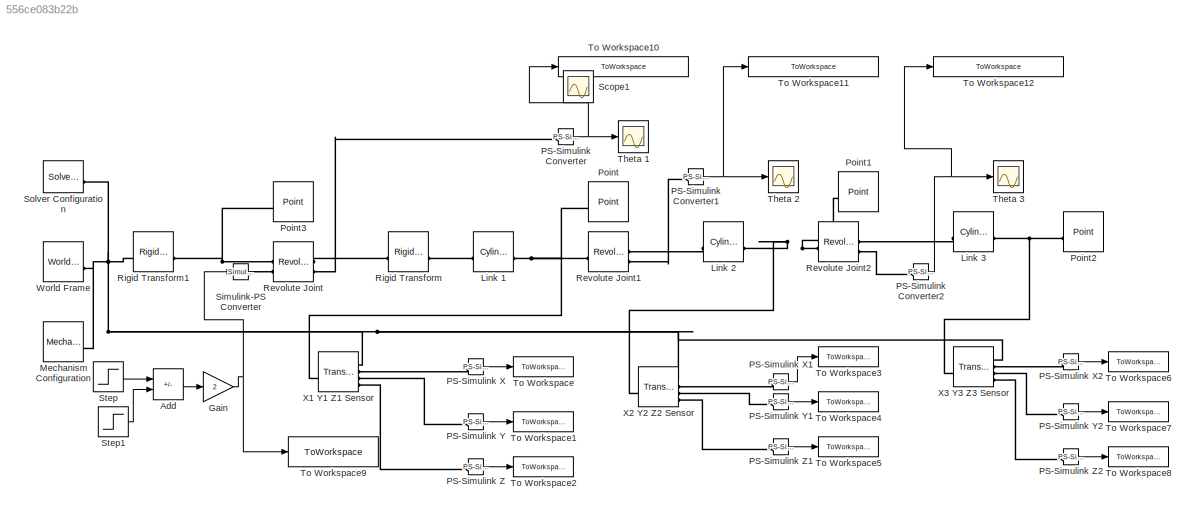
MODEL slx_556ce083b22b
KIND model
CONFIG AbsTol = 1e-9
CONFIG EnableMultiTasking = on
CONFIG FixedStep = 1/(30*10)
CONFIG MaxStep = auto
CONFIG MinStep = auto
CONFIG RelTol = 1e-9
CONFIG SampleTimeConstraint = Unconstrained
CONFIG SolverName = FixedStepAuto
CONFIG StartTime = 0.0
CONFIG StopTime = 20
BLOCK [Sum] Add
  IconShape = rectangular
  Inputs = +-
BLOCK [Gain] Gain
  Gain = 2
BLOCK [Reference] Link 1  REF=sm_lib/Body Elements/Cylindrical Solid
  SourceBlock = sm_lib/Body Elements/Cylindrical Solid
  SourceType = Cylindrical Solid
BLOCK [Reference] Link 2  REF=sm_lib/Body Elements/Cylindrical Solid
  SourceBlock = sm_lib/Body Elements/Cylindrical Solid
  SourceType = Cylindrical Solid
BLOCK [Reference] Link 3  REF=sm_lib/Body Elements/Cylindrical Solid
  SourceBlock = sm_lib/Body Elements/Cylindrical Solid
  SourceType = Cylindrical Solid
BLOCK [Reference] Mechanism Configuration  REF=sm_lib/Utilities/Mechanism
Configuration
  SourceBlock = sm_lib/Utilities/Mechanism\nConfiguration
  SourceType = Mechanism\nConfiguration
BLOCK [Reference] PS-Simulink Converter  REF=nesl_utility/PS-Simulink
Converter
  SourceBlock = nesl_utility/PS-Simulink\nConverter
  SourceType = PS-Simulink\nConverter
BLOCK [Reference] PS-Simulink Converter1  REF=nesl_utility/PS-Simulink
Converter
  SourceBlock = nesl_utility/PS-Simulink\nConverter
  SourceType = PS-Simulink\nConverter
BLOCK [Reference] PS-Simulink Converter2  REF=nesl_utility/PS-Simulink
Converter
  SourceBlock = nesl_utility/PS-Simulink\nConverter
  SourceType = PS-Simulink\nConverter
BLOCK [Reference] PS-Simulink X  REF=nesl_utility/PS-Simulink
Converter
  SourceBlock = nesl_utility/PS-Simulink\nConverter
  SourceType = PS-Simulink\nConverter
BLOCK [Reference] PS-Simulink X1  REF=nesl_utility/PS-Simulink
Converter
  SourceBlock = nesl_utility/PS-Simulink\nConverter
  SourceType = PS-Simulink\nConverter
BLOCK [Reference] PS-Simulink X2  REF=nesl_utility/PS-Simulink
Converter
  SourceBlock = nesl_utility/PS-Simulink\nConverter
  SourceType = PS-Simulink\nConverter
BLOCK [Reference] PS-Simulink Y  REF=nesl_utility/PS-Simulink
Converter
  SourceBlock = nesl_utility/PS-Simulink\nConverter
  SourceType = PS-Simulink\nConverter
BLOCK [Reference] PS-Simulink Y1  REF=nesl_utility/PS-Simulink
Converter
  SourceBlock = nesl_utility/PS-Simulink\nConverter
  SourceType = PS-Simulink\nConverter
BLOCK [Reference] PS-Simulink Y2  REF=nesl_utility/PS-Simulink
Converter
  SourceBlock = nesl_utility/PS-Simulink\nConverter
  SourceType = PS-Simulink\nConverter
BLOCK [Reference] PS-Simulink Z  REF=nesl_utility/PS-Simulink
Converter
  SourceBlock = nesl_utility/PS-Simulink\nConverter
  SourceType = PS-Simulink\nConverter
BLOCK [Reference] PS-Simulink Z1  REF=nesl_utility/PS-Simulink
Converter
  SourceBlock = nesl_utility/PS-Simulink\nConverter
  SourceType = PS-Simulink\nConverter
BLOCK [Reference] PS-Simulink Z2  REF=nesl_utility/PS-Simulink
Converter
  SourceBlock = nesl_utility/PS-Simulink\nConverter
  SourceType = PS-Simulink\nConverter
BLOCK [Reference] Point  REF=sm_lib/Curves and Surfaces/Point
  SourceBlock = sm_lib/Curves and Surfaces/Point
  SourceType = Point
BLOCK [Reference] Point1  REF=sm_lib/Curves and Surfaces/Point
  SourceBlock = sm_lib/Curves and Surfaces/Point
  SourceType = Point
BLOCK [Reference] Point2  REF=sm_lib/Curves and Surfaces/Point
  SourceBlock = sm_lib/Curves and Surfaces/Point
  SourceType = Point
BLOCK [Reference] Point3  REF=sm_lib/Curves and Surfaces/Point
  SourceBlock = sm_lib/Curves and Surfaces/Point
  SourceType = Point
BLOCK [Reference] Revolute Joint  REF=sm_lib/Joints/Revolute Joint
  SourceBlock = sm_lib/Joints/Revolute Joint
  SourceType = Revolute Joint
BLOCK [Reference] Revolute Joint1  REF=sm_lib/Joints/Revolute Joint
  SourceBlock = sm_lib/Joints/Revolute Joint
  SourceType = Revolute Joint
BLOCK [Reference] Revolute Joint2  REF=sm_lib/Joints/Revolute Joint
  SourceBlock = sm_lib/Joints/Revolute Joint
  SourceType = Revolute Joint
BLOCK [Reference] Rigid Transform  REF=sm_lib/Frames and
Transforms/Rigid
Transform
  SourceBlock = sm_lib/Frames and\nTransforms/Rigid\nTransform
  SourceType = Rigid\nTransform
BLOCK [Reference] Rigid Transform1  REF=sm_lib/Frames and
Transforms/Rigid
Transform
  SourceBlock = sm_lib/Frames and\nTransforms/Rigid\nTransform
  SourceType = Rigid\nTransform
BLOCK [Scope] Scope1
  Floating = off
  IOType = viewer
  NumInputPorts = 1
  ScopeSpecificationString = Simulink.scopes.TimeScopeBlockCfg('CurrentConfiguration', extmgr.ConfigurationSet(extmgr.Configuration('Core','General UI',true),extmgr.Configuration('Core','Source UI',true),extmgr.Configuration('Sources','WiredSimulink',true,'DataLoggingVariableName','ScopeData1'),extmgr.Configuration('Visuals','Time Domain',true,'SerializedDisplays',{struct('MinYLimReal','-8.37442','MaxYLimReal','75.36981','YLa...<+1384ch>
BLOCK [Reference] Simulink-PS Converter  REF=nesl_utility/Simulink-PS
Converter
  SourceBlock = nesl_utility/Simulink-PS\nConverter
  SourceType = Simulink-PS\nConverter
BLOCK [Reference] Solver Configuration  REF=nesl_utility/Solver
Configuration
  SourceBlock = nesl_utility/Solver\nConfiguration
  SourceType = Solver\nConfiguration
BLOCK [Step] Step
  SampleTime = 0
  Time = 0
BLOCK [Step] Step1
  SampleTime = 0
  Time = 0.5
BLOCK [Scope] Theta 1
  Floating = off
  NumInputPorts = 1
  ScopeSpecificationString = Simulink.scopes.TimeScopeBlockCfg('CurrentConfiguration', extmgr.ConfigurationSet(extmgr.Configuration('Core','General UI',true),extmgr.Configuration('Core','Source UI',true),extmgr.Configuration('Sources','WiredSimulink',true),extmgr.Configuration('Visuals','Time Domain',true,'SerializedDisplays',{struct('MinYLimReal','-8.37442','MaxYLimReal','75.36981','YLabelReal','','MinYLimMag','0.00000','Max...<+1375ch>
BLOCK [Scope] Theta 2
  Floating = off
  NumInputPorts = 1
  ScopeSpecificationString = Simulink.scopes.TimeScopeBlockCfg('CurrentConfiguration', extmgr.ConfigurationSet(extmgr.Configuration('Core','General UI',true),extmgr.Configuration('Core','Source UI',true),extmgr.Configuration('Sources','WiredSimulink',true,'DataLoggingVariableName','ScopeData1'),extmgr.Configuration('Visuals','Time Domain',true,'SerializedDisplays',{struct('MinYLimReal','2.99279','MaxYLimReal','4.48084','YLabe...<+1408ch>
BLOCK [Scope] Theta 3
  Floating = off
  NumInputPorts = 1
  ScopeSpecificationString = Simulink.scopes.TimeScopeBlockCfg('CurrentConfiguration', extmgr.ConfigurationSet(extmgr.Configuration('Core','General UI',true),extmgr.Configuration('Core','Source UI',true),extmgr.Configuration('Sources','WiredSimulink',true,'DataLoggingVariableName','ScopeData1'),extmgr.Configuration('Visuals','Time Domain',true,'SerializedDisplays',{struct('MinYLimReal','-0.15282','MaxYLimReal','0.18503','YLab...<+1410ch>
BLOCK [ToWorkspace] To Workspace
  FixptAsFi = on
  MaxDataPoints = inf
  SampleTime = -1
  SaveFormat = Timeseries
  VariableName = Link1x
BLOCK [ToWorkspace] To Workspace1
  FixptAsFi = on
  MaxDataPoints = inf
  SampleTime = -1
  SaveFormat = Timeseries
  VariableName = Link1y
BLOCK [ToWorkspace] To Workspace10
  FixptAsFi = on
  MaxDataPoints = inf
  SampleTime = -1
  SaveFormat = Timeseries
  VariableName = Theta1
BLOCK [ToWorkspace] To Workspace11
  FixptAsFi = on
  MaxDataPoints = inf
  SampleTime = -1
  SaveFormat = Timeseries
  VariableName = Theta2
BLOCK [ToWorkspace] To Workspace12
  FixptAsFi = on
  MaxDataPoints = inf
  SampleTime = -1
  SaveFormat = Timeseries
  VariableName = Theta3
BLOCK [ToWorkspace] To Workspace2
  FixptAsFi = on
  MaxDataPoints = inf
  SampleTime = -1
  SaveFormat = Timeseries
  VariableName = Link1z
BLOCK [ToWorkspace] To Workspace3
  FixptAsFi = on
  MaxDataPoints = inf
  SampleTime = -1
  SaveFormat = Timeseries
  VariableName = Link2x
BLOCK [ToWorkspace] To Workspace4
  FixptAsFi = on
  MaxDataPoints = inf
  SampleTime = -1
  SaveFormat = Timeseries
  VariableName = Link2y
BLOCK [ToWorkspace] To Workspace5
  FixptAsFi = on
  MaxDataPoints = inf
  SampleTime = -1
  SaveFormat = Timeseries
  VariableName = Link2z
BLOCK [ToWorkspace] To Workspace6
  FixptAsFi = on
  MaxDataPoints = inf
  SampleTime = -1
  SaveFormat = Timeseries
  VariableName = Link3x
BLOCK [ToWorkspace] To Workspace7
  FixptAsFi = on
  MaxDataPoints = inf
  SampleTime = -1
  SaveFormat = Timeseries
  VariableName = Link3y
BLOCK [ToWorkspace] To Workspace8
  FixptAsFi = on
  MaxDataPoints = inf
  SampleTime = -1
  SaveFormat = Timeseries
  VariableName = Link3z
BLOCK [ToWorkspace] To Workspace9
  FixptAsFi = on
  MaxDataPoints = inf
  SampleTime = -1
  SaveFormat = Timeseries
  VariableName = Torque
BLOCK [Reference] World Frame  REF=sm_lib/Frames and
Transforms/World Frame
  SourceBlock = sm_lib/Frames and\nTransforms/World Frame
  SourceType = World Frame
BLOCK [Reference] X1 Y1 Z1 Sensor  REF=sm_lib/Frames and
Transforms/Transform
Sensor
  SourceBlock = sm_lib/Frames and\nTransforms/Transform\nSensor
  SourceType = Transform\nSensor
BLOCK [Reference] X2 Y2 Z2 Sensor  REF=sm_lib/Frames and
Transforms/Transform
Sensor
  SourceBlock = sm_lib/Frames and\nTransforms/Transform\nSensor
  SourceType = Transform\nSensor
BLOCK [Reference] X3 Y3 Z3 Sensor  REF=sm_lib/Frames and
Transforms/Transform
Sensor
  SourceBlock = sm_lib/Frames and\nTransforms/Transform\nSensor
  SourceType = Transform\nSensor
LINE Add:1 -> Gain:1
NET Gain:1 -> Simulink-PS Converter:1, To Workspace9:1
NET PS-Simulink Converter1:1 -> Theta 2:1, To Workspace11:1
NET PS-Simulink Converter2:1 -> Theta 3:1, To Workspace12:1
NET PS-Simulink Converter:1 -> Theta 1:1, To Workspace10:1
LINE PS-Simulink X1:1 -> To Workspace3:1
LINE PS-Simulink X2:1 -> To Workspace6:1
LINE PS-Simulink X:1 -> To Workspace:1
LINE PS-Simulink Y1:1 -> To Workspace4:1
LINE PS-Simulink Y2:1 -> To Workspace7:1
LINE PS-Simulink Y:1 -> To Workspace1:1
LINE PS-Simulink Z1:1 -> To Workspace5:1
LINE PS-Simulink Z2:1 -> To Workspace8:1
LINE PS-Simulink Z:1 -> To Workspace2:1
LINE Step1:1 -> Add:2
LINE Step:1 -> Add:1
PLINE Link 1:LConn1 -- Rigid Transform:RConn1
PNET net1: Link 1:RConn1 -- Point:LConn1 -- Revolute Joint1:LConn1 -- X1 Y1 Z1 Sensor:LConn1
PLINE Link 2:LConn1 -- Revolute Joint1:RConn1
PNET net2: Link 2:RConn1 -- Point1:LConn1 -- Revolute Joint2:LConn1 -- X2 Y2 Z2 Sensor:LConn1
PLINE Link 3:LConn1 -- Revolute Joint2:RConn1
PNET net3: Link 3:RConn1 -- Point2:LConn1 -- X3 Y3 Z3 Sensor:LConn1
PNET net4: Mechanism Configuration:RConn1 -- Rigid Transform1:LConn1 -- Solver Configuration:RConn1 -- World Frame:RConn1 -- X1 Y1 Z1 Sensor:RConn1 -- X2 Y2 Z2 Sensor:RConn1 -- X3 Y3 Z3 Sensor:RConn1
PLINE PS-Simulink Converter1:LConn1 -- Revolute Joint1:RConn2
PLINE PS-Simulink Converter2:LConn1 -- Revolute Joint2:RConn2
PLINE PS-Simulink Converter:LConn1 -- Revolute Joint:RConn2
PLINE PS-Simulink X1:LConn1 -- X2 Y2 Z2 Sensor:RConn2
PLINE PS-Simulink X2:LConn1 -- X3 Y3 Z3 Sensor:RConn2
PLINE PS-Simulink X:LConn1 -- X1 Y1 Z1 Sensor:RConn2
PLINE PS-Simulink Y1:LConn1 -- X2 Y2 Z2 Sensor:RConn3
PLINE PS-Simulink Y2:LConn1 -- X3 Y3 Z3 Sensor:RConn3
PLINE PS-Simulink Y:LConn1 -- X1 Y1 Z1 Sensor:RConn3
PLINE PS-Simulink Z1:LConn1 -- X2 Y2 Z2 Sensor:RConn4
PLINE PS-Simulink Z2:LConn1 -- X3 Y3 Z3 Sensor:RConn4
PLINE PS-Simulink Z:LConn1 -- X1 Y1 Z1 Sensor:RConn4
PNET net5: Point3:LConn1 -- Revolute Joint:LConn1 -- Rigid Transform1:RConn1
PLINE Revolute Joint:LConn2 -- Simulink-PS Converter:RConn1
PLINE Revolute Joint:RConn1 -- Rigid Transform:LConn1
note: NET lines group one-source signal fan-out (src -> all destinations, sorted); 1:1 wires keep LINE; PNET lines group multi-terminal physical nets as a canonical sorted terminal list (undirected conserving connections); 2-terminal nets keep the pairwise PLINE form
